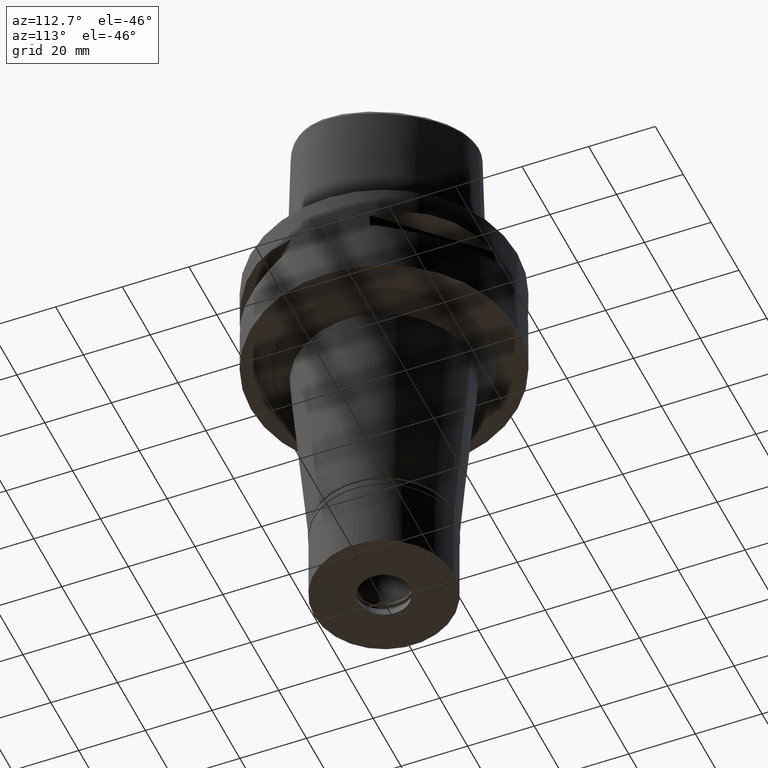
[diagram: clean part render]
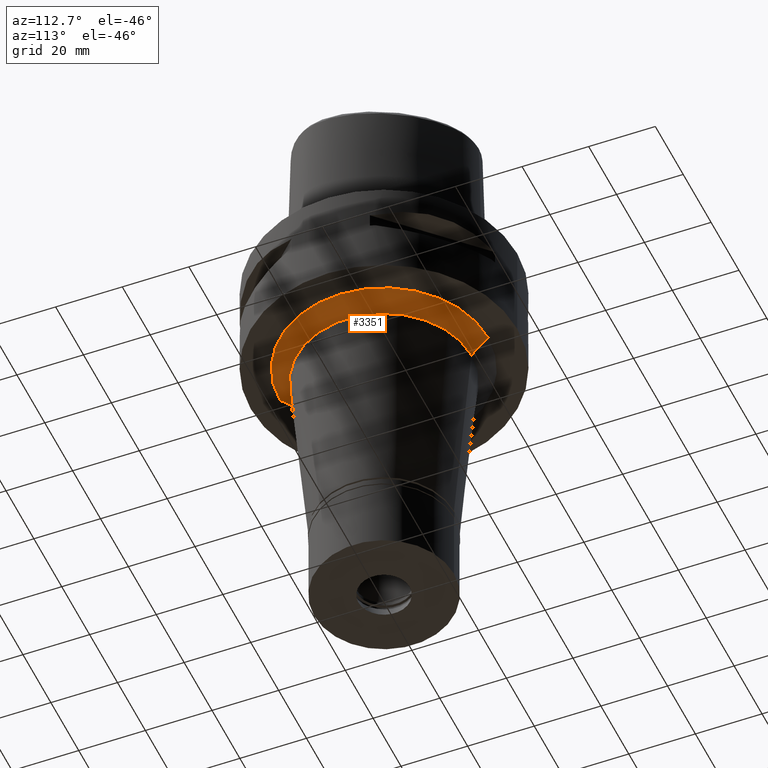
[diagram: same view with one face highlighted and labeled with its STEP entity id]
A machine part, auxiliary view. The second image highlights one B-rep face of the part: STEP entity #3351.
In plain terms, the highlighted conical surface has half-angle 45 deg.
Its self-contained STEP definition (entity closure, byte-faithful):
#102 = CONICAL_SURFACE ( 'NONE', #3434, 28.74057094520000177, 0.7853981633972997312 ) ;
#270 = VECTOR ( 'NONE', #3465, 1000.000000000000000 ) ;
#386 = CARTESIAN_POINT ( 'NONE',  ( 0.0000000000000000000, 31.24057094520000177, -30.00000000000000000 ) ) ;
#473 = CARTESIAN_POINT ( 'NONE',  ( 0.0000000000000000000, -31.24057094520000177, -30.00000000000000000 ) ) ;
#484 = CARTESIAN_POINT ( 'NONE',  ( 0.0000000000000000000, 0.0000000000000000000, -35.00000000000000000 ) ) ;
#894 = EDGE_CURVE ( 'NONE', #4669, #2237, #4098, .T. ) ;
#1087 = ORIENTED_EDGE ( 'NONE', *, *, #2321, .F. ) ;
#1162 = VERTEX_POINT ( 'NONE', #3819 ) ;
#1605 = AXIS2_PLACEMENT_3D ( 'NONE', #484, #3329, #4067 ) ;
#1724 = CARTESIAN_POINT ( 'NONE',  ( 0.0000000000000000000, -26.24057094519999822, -35.00000000000000000 ) ) ;
#1754 = EDGE_LOOP ( 'NONE', ( #4570, #2134, #3972, #1087 ) ) ;
#1778 = LINE ( 'NONE', #473, #4599 ) ;
#2134 = ORIENTED_EDGE ( 'NONE', *, *, #2167, .T. ) ;
#2167 = EDGE_CURVE ( 'NONE', #1162, #4669, #1778, .T. ) ;
#2230 = CARTESIAN_POINT ( 'NONE',  ( 0.0000000000000000000, 31.24057094520000177, -30.00000000000000000 ) ) ;
#2237 = VERTEX_POINT ( 'NONE', #2530 ) ;
#2321 = EDGE_CURVE ( 'NONE', #3874, #2237, #5022, .T. ) ;
#2475 = DIRECTION ( 'NONE',  ( 0.0000000000000000000, 1.000000000000000000, 0.0000000000000000000 ) ) ;
#2530 = CARTESIAN_POINT ( 'NONE',  ( 0.0000000000000000000, 26.24057094519999822, -35.00000000000000000 ) ) ;
#3232 = EDGE_CURVE ( 'NONE', #3874, #1162, #3764, .T. ) ;
#3291 = DIRECTION ( 'NONE',  ( 0.0000000000000000000, 0.0000000000000000000, -1.000000000000000000 ) ) ;
#3329 = DIRECTION ( 'NONE',  ( 0.0000000000000000000, 0.0000000000000000000, 1.000000000000000000 ) ) ;
#3351 = ADVANCED_FACE ( 'NONE', ( #4145 ), #102, .T. ) ;
#3352 = AXIS2_PLACEMENT_3D ( 'NONE', #3715, #3291, #4889 ) ;
#3363 = DIRECTION ( 'NONE',  ( 0.0000000000000000000, 0.7071067811864980568, -0.7071067811865969777 ) ) ;
#3434 = AXIS2_PLACEMENT_3D ( 'NONE', #4918, #4510, #2475 ) ;
#3465 = DIRECTION ( 'NONE',  ( 0.0000000000000000000, -0.7071067811864980568, -0.7071067811865969777 ) ) ;
#3715 = CARTESIAN_POINT ( 'NONE',  ( 0.0000000000000000000, 0.0000000000000000000, -30.00000000000000000 ) ) ;
#3764 = CIRCLE ( 'NONE', #3352, 31.24057094520000177 ) ;
#3819 = CARTESIAN_POINT ( 'NONE',  ( 0.0000000000000000000, -31.24057094520000177, -30.00000000000000000 ) ) ;
#3874 = VERTEX_POINT ( 'NONE', #386 ) ;
#3972 = ORIENTED_EDGE ( 'NONE', *, *, #894, .T. ) ;
#4067 = DIRECTION ( 'NONE',  ( 0.0000000000000000000, -1.000000000000000000, 0.0000000000000000000 ) ) ;
#4098 = CIRCLE ( 'NONE', #1605, 26.24057094519999822 ) ;
#4145 = FACE_OUTER_BOUND ( 'NONE', #1754, .T. ) ;
#4510 = DIRECTION ( 'NONE',  ( 0.0000000000000000000, 0.0000000000000000000, 1.000000000000000000 ) ) ;
#4570 = ORIENTED_EDGE ( 'NONE', *, *, #3232, .T. ) ;
#4599 = VECTOR ( 'NONE', #3363, 1000.000000000000000 ) ;
#4669 = VERTEX_POINT ( 'NONE', #1724 ) ;
#4889 = DIRECTION ( 'NONE',  ( 0.0000000000000000000, 1.000000000000000000, 0.0000000000000000000 ) ) ;
#4918 = CARTESIAN_POINT ( 'NONE',  ( 0.0000000000000000000, 0.0000000000000000000, -32.50000000000000000 ) ) ;
#5022 = LINE ( 'NONE', #2230, #270 ) ;